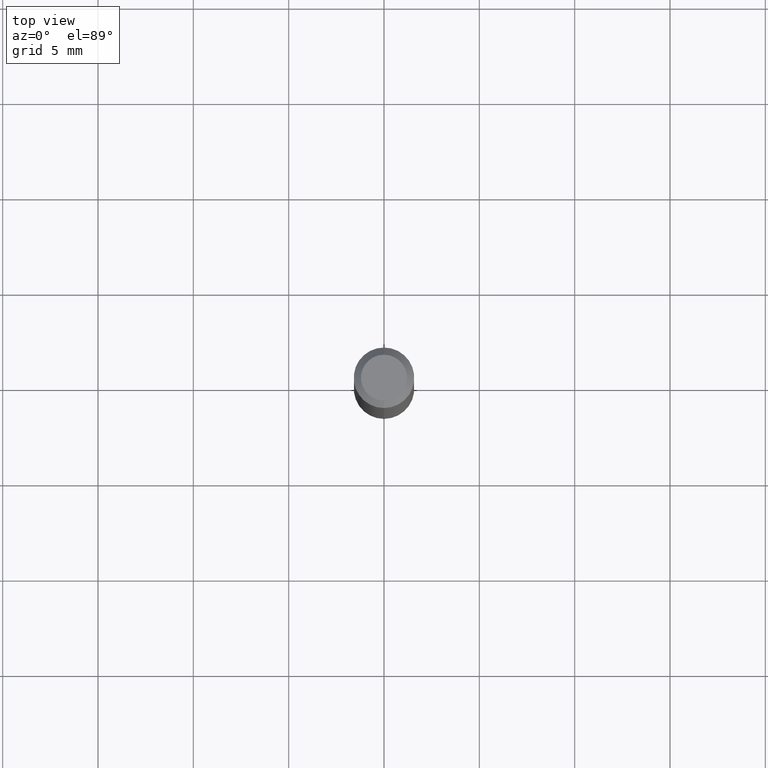
[diagram: clean part render]
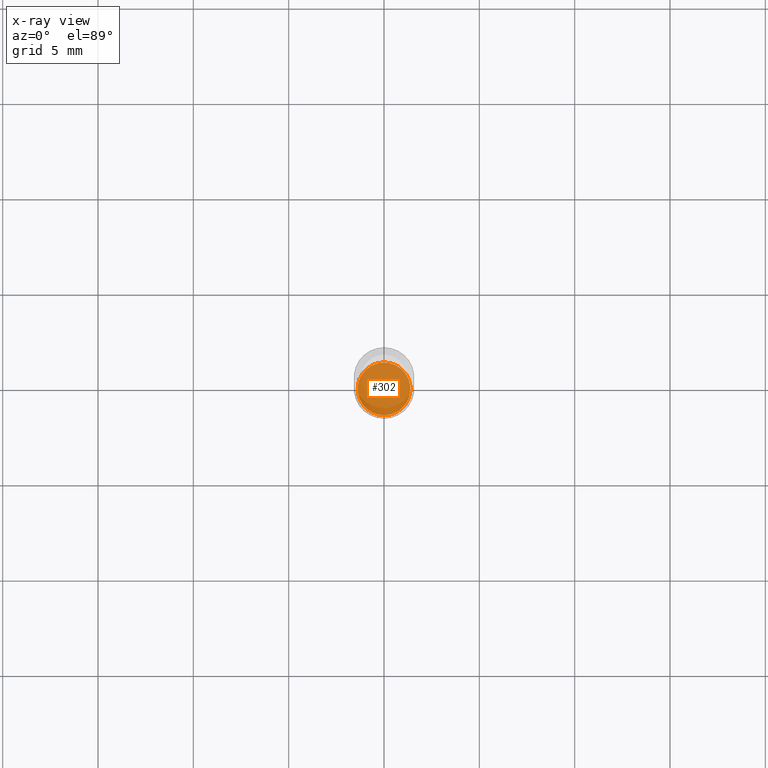
[diagram: x-ray — body ghosted, one internal face saturated and labeled with its STEP entity id]
A machine part, top view, then the same camera in x-ray: the body is ghosted and one INTERNAL B-rep face — a face not visible from any outside direction — is saturated and labeled: STEP entity #302.
In plain terms, the highlighted planar face has unit normal (-0, 0, 1).
Its self-contained STEP definition (entity closure, byte-faithful):
#5 = CIRCLE ( 'NONE', #376, 0.05450000000000009698 ) ;
#30 = CIRCLE ( 'NONE', #401, 0.05450000000000009698 ) ;
#51 = EDGE_LOOP ( 'NONE', ( #465, #403 ) ) ;
#75 = AXIS2_PLACEMENT_3D ( 'NONE', #392, #262, #468 ) ;
#101 = FACE_OUTER_BOUND ( 'NONE', #51, .T. ) ;
#114 = EDGE_CURVE ( 'NONE', #181, #364, #5, .T. ) ;
#142 = DIRECTION ( 'NONE',  ( -2.445464214186550861E-29, 3.491487914846480807E-15, 1.000000000000000000 ) ) ;
#165 = CARTESIAN_POINT ( 'NONE',  ( 3.890221478286884281E-16, 0.05449999999999543404, -1.335000000000000409 ) ) ;
#181 = VERTEX_POINT ( 'NONE', #454 ) ;
#222 = DIRECTION ( 'NONE',  ( -2.445464214186550861E-29, 3.491487914846480807E-15, 1.000000000000000000 ) ) ;
#234 = EDGE_CURVE ( 'NONE', #364, #181, #30, .T. ) ;
#262 = DIRECTION ( 'NONE',  ( -2.445464214186550581E-29, 3.491487914846480807E-15, 1.000000000000000000 ) ) ;
#296 = CARTESIAN_POINT ( 'NONE',  ( 3.264694725939045834E-29, -4.661136366320052731E-15, -1.335000000000000187 ) ) ;
#302 = ADVANCED_FACE ( 'NONE', ( #101 ), #476, .F. ) ;
#358 = DIRECTION ( 'NONE',  ( -6.982962677686265922E-15, -1.000000000000000000, 5.012565125989464495E-15 ) ) ;
#364 = VERTEX_POINT ( 'NONE', #165 ) ;
#375 = DIRECTION ( 'NONE',  ( -6.982962677686265922E-15, -1.000000000000000000, 5.012565125989464495E-15 ) ) ;
#376 = AXIS2_PLACEMENT_3D ( 'NONE', #296, #222, #375 ) ;
#392 = CARTESIAN_POINT ( 'NONE',  ( 3.264694725939045834E-29, -4.661136366320052731E-15, -1.335000000000000187 ) ) ;
#401 = AXIS2_PLACEMENT_3D ( 'NONE', #436, #142, #358 ) ;
#403 = ORIENTED_EDGE ( 'NONE', *, *, #234, .F. ) ;
#436 = CARTESIAN_POINT ( 'NONE',  ( 3.264694725939045834E-29, -4.661136366320052731E-15, -1.335000000000000187 ) ) ;
#454 = CARTESIAN_POINT ( 'NONE',  ( -3.805714659338695356E-16, -0.05450000000000475298, -1.334999999999999742 ) ) ;
#465 = ORIENTED_EDGE ( 'NONE', *, *, #114, .F. ) ;
#468 = DIRECTION ( 'NONE',  ( -6.982962677686265922E-15, -1.000000000000000000, 3.491487914846480807E-15 ) ) ;
#476 = PLANE ( 'NONE',  #75 ) ;